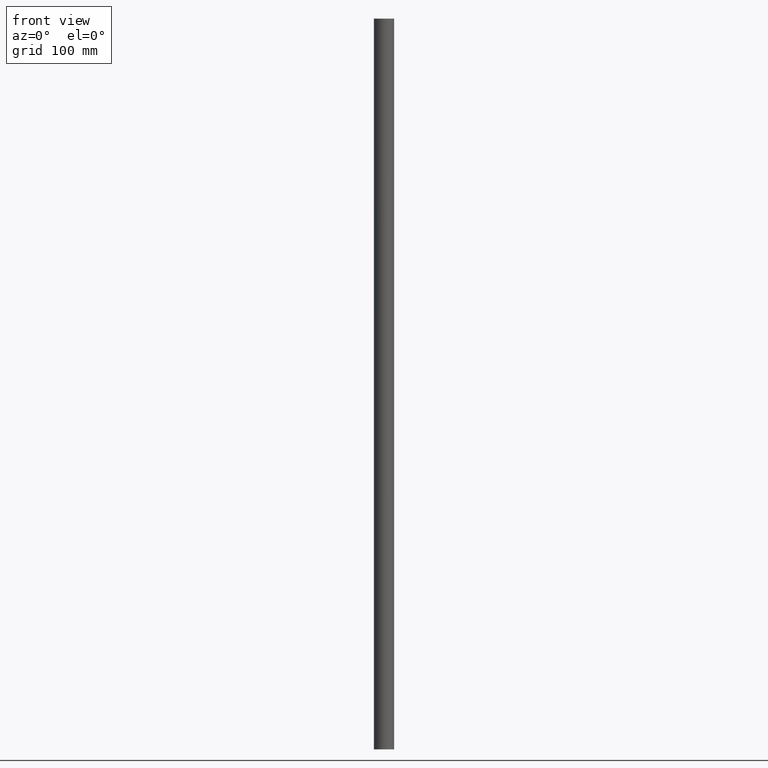
[diagram: clean part render]
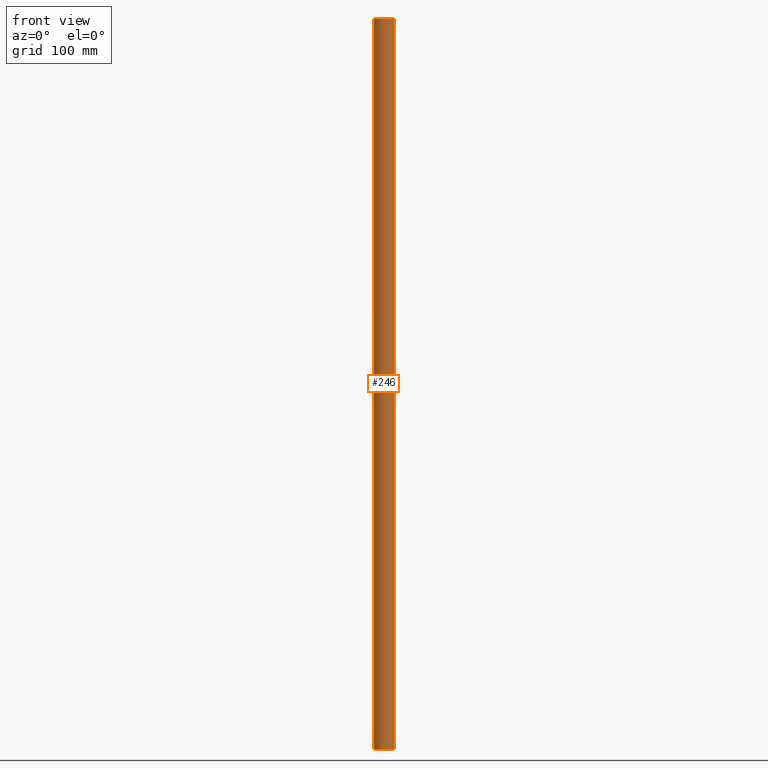
[diagram: same view with one face highlighted and labeled with its STEP entity id]
A machine part, front view. The second image highlights one B-rep face of the part: STEP entity #246.
In plain terms, the highlighted cylindrical surface (edge-blend (fillet) strip) has radius 12.7 mm, axis along (0, 0, 1).
Its self-contained STEP definition (entity closure, byte-faithful):
#2 = VERTEX_POINT ( 'NONE', #209 ) ;
#6 = DIRECTION ( 'NONE',  ( 1.000000000000000000, 0.000000000000000000, 0.000000000000000000 ) ) ;
#16 = LINE ( 'NONE', #99, #96 ) ;
#18 = LINE ( 'NONE', #182, #85 ) ;
#22 = EDGE_LOOP ( 'NONE', ( #121, #261, #263, #190 ) ) ;
#23 = EDGE_CURVE ( 'NONE', #2, #41, #18, .T. ) ;
#41 = VERTEX_POINT ( 'NONE', #249 ) ;
#58 = CIRCLE ( 'NONE', #253, 0.5000000000000000000 ) ;
#68 = CARTESIAN_POINT ( 'NONE',  ( 0.000000000000000000, 1.750000000000000000, -36.00000000000000000 ) ) ;
#75 = CARTESIAN_POINT ( 'NONE',  ( 0.000000000000000000, 1.750000000000000000, 0.000000000000000000 ) ) ;
#85 = VECTOR ( 'NONE', #203, 39.37007874015748143 ) ;
#94 = DIRECTION ( 'NONE',  ( 0.000000000000000000, 0.000000000000000000, 1.000000000000000000 ) ) ;
#96 = VECTOR ( 'NONE', #268, 39.37007874015748143 ) ;
#98 = DIRECTION ( 'NONE',  ( 1.000000000000000000, 0.000000000000000000, 0.000000000000000000 ) ) ;
#99 = CARTESIAN_POINT ( 'NONE',  ( -0.5000000000000000000, 1.750000000000000000, -36.00000000000000000 ) ) ;
#114 = FACE_OUTER_BOUND ( 'NONE', #22, .T. ) ;
#118 = EDGE_CURVE ( 'NONE', #123, #137, #16, .T. ) ;
#121 = ORIENTED_EDGE ( 'NONE', *, *, #118, .F. ) ;
#123 = VERTEX_POINT ( 'NONE', #147 ) ;
#137 = VERTEX_POINT ( 'NONE', #256 ) ;
#140 = AXIS2_PLACEMENT_3D ( 'NONE', #68, #145, #6 ) ;
#145 = DIRECTION ( 'NONE',  ( 0.000000000000000000, 0.000000000000000000, 1.000000000000000000 ) ) ;
#147 = CARTESIAN_POINT ( 'NONE',  ( -0.5000000000000000000, 1.750000000000000000, -36.00000000000000000 ) ) ;
#167 = EDGE_CURVE ( 'NONE', #123, #2, #197, .T. ) ;
#169 = AXIS2_PLACEMENT_3D ( 'NONE', #272, #94, #98 ) ;
#173 = CYLINDRICAL_SURFACE ( 'NONE', #140, 0.5000000000000000000 ) ;
#181 = DIRECTION ( 'NONE',  ( 1.000000000000000000, 0.000000000000000000, 0.000000000000000000 ) ) ;
#182 = CARTESIAN_POINT ( 'NONE',  ( 0.5000000000000000000, 1.750000000000000000, -36.00000000000000000 ) ) ;
#190 = ORIENTED_EDGE ( 'NONE', *, *, #210, .F. ) ;
#197 = CIRCLE ( 'NONE', #169, 0.5000000000000000000 ) ;
#202 = DIRECTION ( 'NONE',  ( 0.000000000000000000, 0.000000000000000000, 1.000000000000000000 ) ) ;
#203 = DIRECTION ( 'NONE',  ( 0.000000000000000000, 0.000000000000000000, 1.000000000000000000 ) ) ;
#209 = CARTESIAN_POINT ( 'NONE',  ( 0.5000000000000000000, 1.750000000000000000, -36.00000000000000000 ) ) ;
#210 = EDGE_CURVE ( 'NONE', #137, #41, #58, .T. ) ;
#246 = ADVANCED_FACE ( 'NONE', ( #114 ), #173, .T. ) ;
#249 = CARTESIAN_POINT ( 'NONE',  ( 0.5000000000000000000, 1.750000000000000000, 0.000000000000000000 ) ) ;
#253 = AXIS2_PLACEMENT_3D ( 'NONE', #75, #202, #181 ) ;
#256 = CARTESIAN_POINT ( 'NONE',  ( -0.5000000000000000000, 1.750000000000000000, 0.000000000000000000 ) ) ;
#261 = ORIENTED_EDGE ( 'NONE', *, *, #167, .T. ) ;
#263 = ORIENTED_EDGE ( 'NONE', *, *, #23, .T. ) ;
#268 = DIRECTION ( 'NONE',  ( 0.000000000000000000, 0.000000000000000000, 1.000000000000000000 ) ) ;
#272 = CARTESIAN_POINT ( 'NONE',  ( 0.000000000000000000, 1.750000000000000000, -36.00000000000000000 ) ) ;